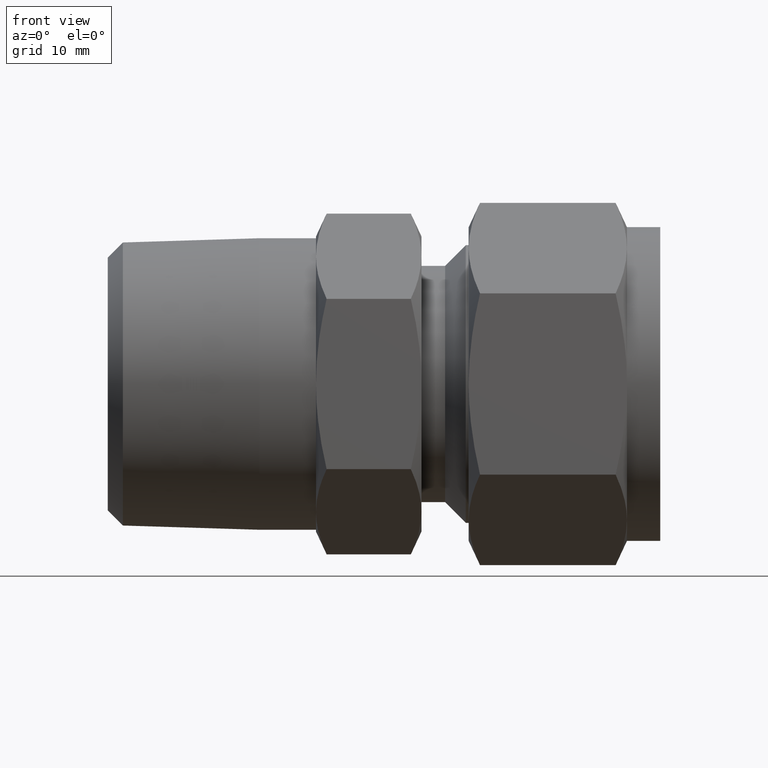
[diagram: clean part render]
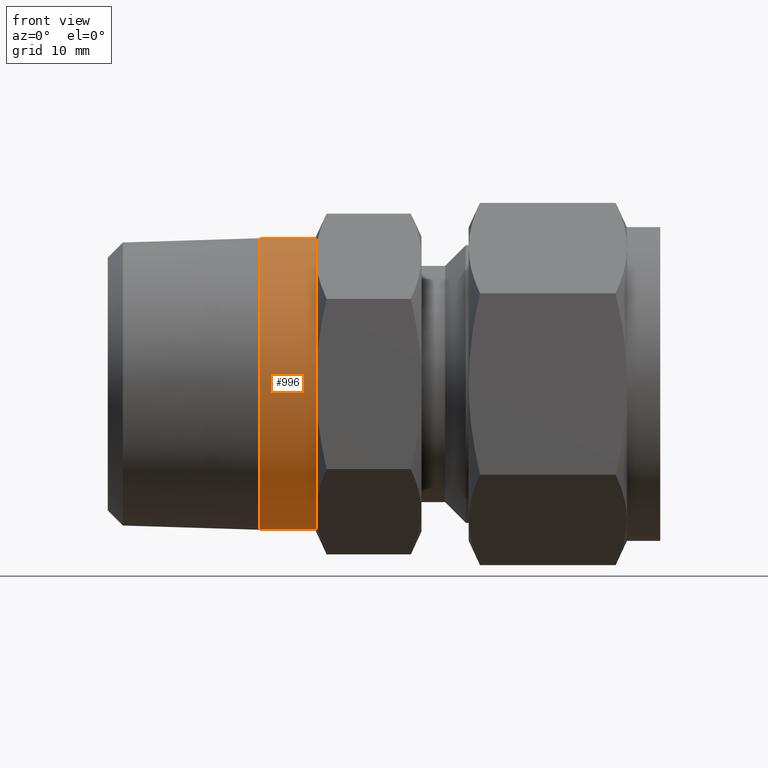
[diagram: same view with one face highlighted and labeled with its STEP entity id]
A machine part, front view. The second image highlights one B-rep face of the part: STEP entity #996.
In plain terms, the highlighted cylindrical surface (partial cylindrical patch) has radius 13.335 mm, axis along (1, -0, -0).
Its self-contained STEP definition (entity closure, byte-faithful):
#139 = DIRECTION ( 'NONE',  ( 1.000000000000000000, -1.110223024625159992E-16, -1.110223024625159992E-16 ) ) ;
#153 = CYLINDRICAL_SURFACE ( 'NONE', #718, 13.33499999999999908 ) ;
#180 = DIRECTION ( 'NONE',  ( 0.000000000000000000, 7.221334624624056647E-33, -1.000000000000000000 ) ) ;
#196 = VECTOR ( 'NONE', #1079, 1000.000000000000000 ) ;
#232 = AXIS2_PLACEMENT_3D ( 'NONE', #1310, #139, #1000 ) ;
#292 = DIRECTION ( 'NONE',  ( -1.000000000000000000, 1.110223024625159992E-16, 1.110223024625159992E-16 ) ) ;
#309 = FACE_OUTER_BOUND ( 'NONE', #957, .T. ) ;
#312 = DIRECTION ( 'NONE',  ( 0.000000000000000000, 7.498303609110688567E-33, -1.000000000000000000 ) ) ;
#389 = CARTESIAN_POINT ( 'NONE',  ( 19.05000000000000071, 9.998987862749102167E-32, -13.33499999999999908 ) ) ;
#446 = CARTESIAN_POINT ( 'NONE',  ( 19.05000000000000071, 1.565395858797950031E-31, 1.565395858797950031E-31 ) ) ;
#558 = VERTEX_POINT ( 'NONE', #1624 ) ;
#577 = DIRECTION ( 'NONE',  ( 1.000000000000000000, -1.110223024625159992E-16, -1.110223024625159992E-16 ) ) ;
#708 = CIRCLE ( 'NONE', #232, 13.33499999999999908 ) ;
#718 = AXIS2_PLACEMENT_3D ( 'NONE', #1874, #577, #180 ) ;
#742 = VERTEX_POINT ( 'NONE', #389 ) ;
#794 = ORIENTED_EDGE ( 'NONE', *, *, #1693, .T. ) ;
#821 = LINE ( 'NONE', #1393, #196 ) ;
#894 = LINE ( 'NONE', #1469, #945 ) ;
#945 = VECTOR ( 'NONE', #292, 1000.000000000000000 ) ;
#957 = EDGE_LOOP ( 'NONE', ( #1495, #1834, #794, #1426 ) ) ;
#996 = ADVANCED_FACE ( 'NONE', ( #309 ), #153, .T. ) ;
#1000 = DIRECTION ( 'NONE',  ( -1.300879996982982485E-16, 7.221334624624056647E-33, -1.000000000000000000 ) ) ;
#1025 = CARTESIAN_POINT ( 'NONE',  ( 13.86078000000000010, 6.354751783382160908E-16, -13.33499999999999908 ) ) ;
#1054 = VERTEX_POINT ( 'NONE', #1025 ) ;
#1064 = CIRCLE ( 'NONE', #1397, 13.33499999999999908 ) ;
#1079 = DIRECTION ( 'NONE',  ( 1.000000000000000000, -1.110223024625159992E-16, -1.110223024625159992E-16 ) ) ;
#1275 = VERTEX_POINT ( 'NONE', #1683 ) ;
#1310 = CARTESIAN_POINT ( 'NONE',  ( 13.86078000000000010, 6.354751783382160908E-16, 0.000000000000000000 ) ) ;
#1393 = CARTESIAN_POINT ( 'NONE',  ( 16.45539000000000129, -1.344952996629869802E-15, -13.33499999999999908 ) ) ;
#1397 = AXIS2_PLACEMENT_3D ( 'NONE', #446, #1588, #312 ) ;
#1426 = ORIENTED_EDGE ( 'NONE', *, *, #1476, .T. ) ;
#1469 = CARTESIAN_POINT ( 'NONE',  ( 16.45539000000000129, 1.921072149014409691E-15, 13.33499999999999908 ) ) ;
#1476 = EDGE_CURVE ( 'NONE', #1275, #1054, #708, .T. ) ;
#1495 = ORIENTED_EDGE ( 'NONE', *, *, #1856, .T. ) ;
#1527 = EDGE_CURVE ( 'NONE', #558, #742, #1064, .T. ) ;
#1588 = DIRECTION ( 'NONE',  ( 1.000000000000000000, 6.797930850579320182E-33, -1.110223024625159992E-16 ) ) ;
#1624 = CARTESIAN_POINT ( 'NONE',  ( 19.05000000000000071, 1.633012572822140042E-15, 13.33499999999999908 ) ) ;
#1683 = CARTESIAN_POINT ( 'NONE',  ( 13.86078000000000010, 2.209131725206679734E-15, 13.33499999999999908 ) ) ;
#1693 = EDGE_CURVE ( 'NONE', #558, #1275, #894, .T. ) ;
#1834 = ORIENTED_EDGE ( 'NONE', *, *, #1527, .F. ) ;
#1856 = EDGE_CURVE ( 'NONE', #1054, #742, #821, .T. ) ;
#1874 = CARTESIAN_POINT ( 'NONE',  ( 16.45539000000000129, 2.880595761922680215E-16, 2.880595761922680215E-16 ) ) ;